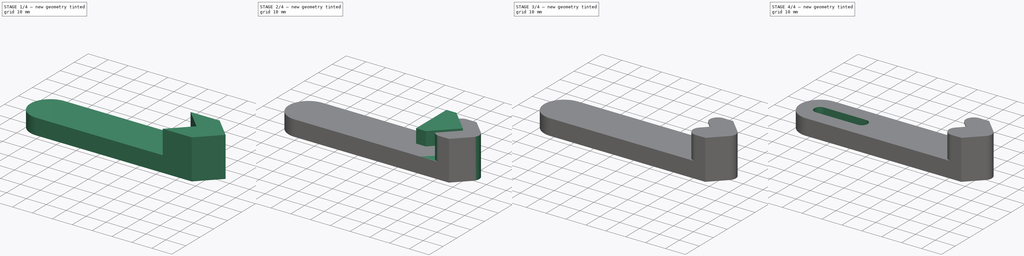
[diagram: build sequence overview — one tinted view per stage of 4, left to right]
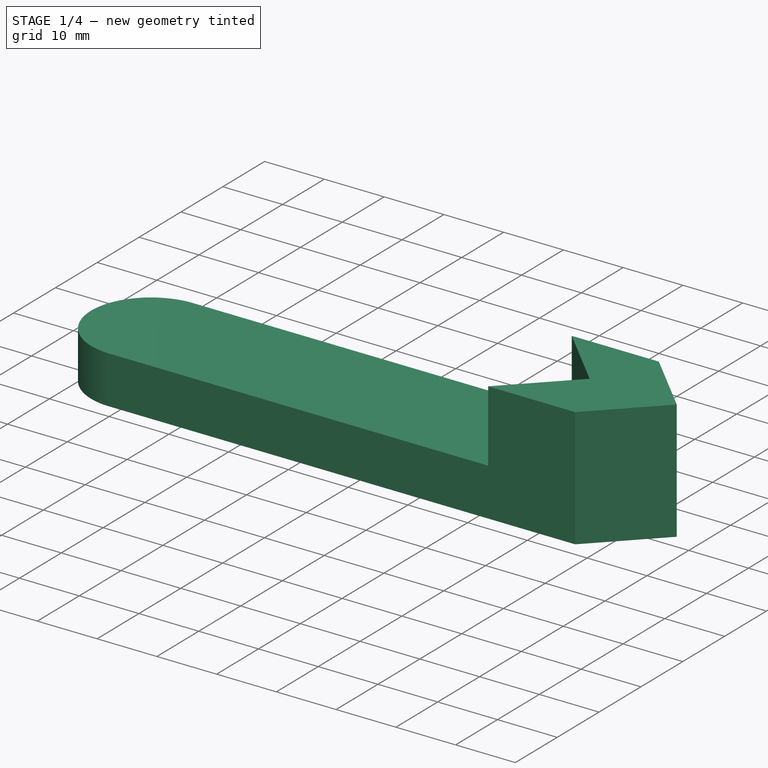
[diagram: stage 1 of 4 — iso view after this stage's code; geometry added in this stage tinted green]
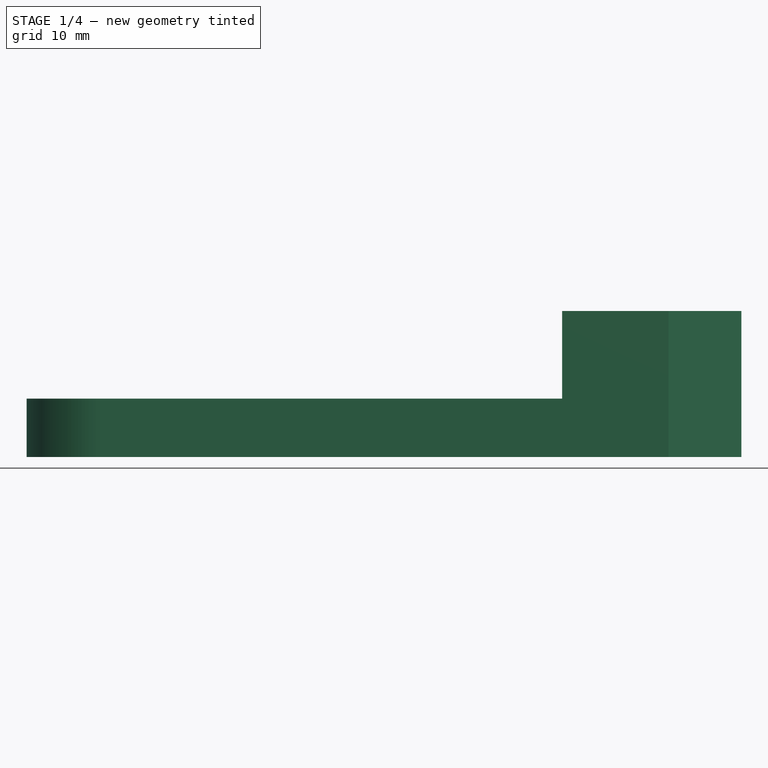
[diagram: stage 1 of 4 — front view after this stage's code; geometry added in this stage tinted green]
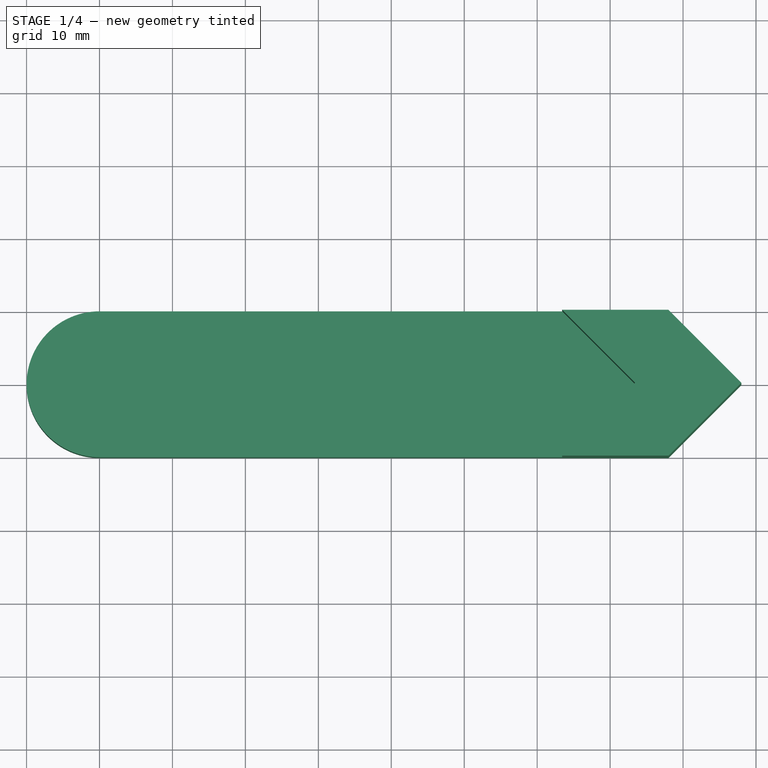
[diagram: stage 1 of 4 — top view after this stage's code; geometry added in this stage tinted green]
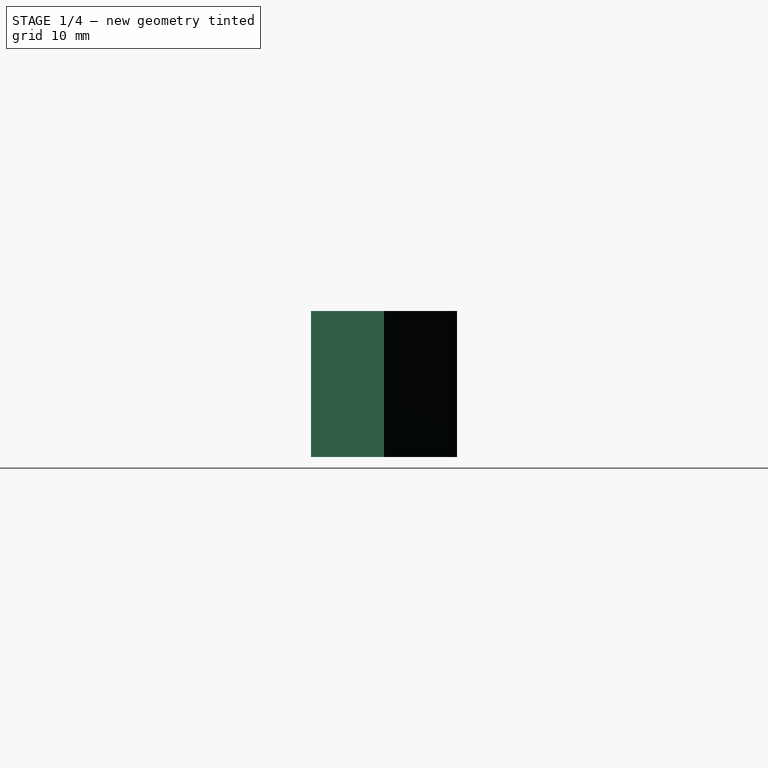
[diagram: stage 1 of 4 — right view after this stage's code; geometry added in this stage tinted green]
FCSTD DOCUMENT
Label: glass_corner
objects: Sketcher::SketchObject×6, PartDesign::Pocket×4, PartDesign::Pad×2, PartDesign::Mirrored×1, PartDesign::Fillet×1, Part::Cut×1
note: 21 computed .brp shape members not serialized (recipe doc carries the construction recipe); baked Part::Feature solids carry a one-line shape summary decoded from their .brp

FEATURE [Sketcher::SketchObject] Sketch
  sketch-geometry (5):
    g0: LineSegment StartX=78 StartY=-10 StartZ=0 EndX=0 EndY=-10 EndZ=0
    g1: ArcOfCircle CenterX=0 CenterY=0 CenterZ=0 NormalX=0 NormalY=0 NormalZ=1 Radius=10 StartAngle=1.5708 EndAngle=4.71239
    g2: LineSegment StartX=0 StartY=10 StartZ=0 EndX=78 EndY=10 EndZ=0
    g3: LineSegment StartX=78 StartY=10 StartZ=0 EndX=88 EndY=0 EndZ=0
    g4: LineSegment StartX=88 StartY=0 StartZ=0 EndX=78 EndY=-10 EndZ=0
  constraints (13):
    c: Horizontal(g0)
    c: Tangent(g0,g1)
    c: Tangent(g1,g2)
    c: Coincident(g2,g3)
    c: Coincident(g3,g4)
    c: Coincident(g4,g0)
    c: Radius(g1) = 10
    c: Horizontal(g2)
    c: Equal(g2,g0)
    c: Equal(g3,g4)
    c: Perpendicular(g3,g4)
    c: DistanceX(g0,g3) = 88
    c: Coincident(g1,g-1)
FEATURE [PartDesign::Pad] Pad
  Length = 20
  Length2 = 100
  Sketch = -> Sketch
  Type = 0
FEATURE [Sketcher::SketchObject] Sketch001
  ExternalGeometry = -> [Pad]
  Placement = pos=(0,0,20) rot=(0,0,1;0rad)
  Support = -> Pad [Face7]
  sketch-geometry (5):
    g0: LineSegment StartX=-12 StartY=11 StartZ=0 EndX=62.4195 EndY=11 EndZ=0
    g1: LineSegment StartX=62.4195 StartY=11 StartZ=0 EndX=73.4195 EndY=0 EndZ=0
    g2: LineSegment StartX=62.4195 StartY=-11 StartZ=0 EndX=-12 EndY=-11 EndZ=0
    g3: LineSegment StartX=-12 StartY=-11 StartZ=0 EndX=-12 EndY=11 EndZ=0
    g4: LineSegment StartX=62.4195 StartY=-11 StartZ=0 EndX=73.4195 EndY=0 EndZ=0
  constraints (15):
    c: Coincident(g0,g1)
    c: Coincident(g2,g3)
    c: Coincident(g3,g0)
    c: Horizontal(g0)
    c: Horizontal(g2)
    c: Vertical(g3)
    c: Parallel(g1,g-3)
    c: Coincident(g4,g2)
    c: Coincident(g4,g1)
    c: Parallel(g4,g-4)
    c: PointOnObject(g1,g-1)
    c: Equal(g2,g0)
    c: Distance(g-3,g1) = 10.31
    c: DistanceX(g-1,g2) = -12
    c: DistanceY(g2,g-4) = 1
FEATURE [PartDesign::Pocket] Pocket
  Length = 12
  Sketch = -> Sketch001
  Type = 0
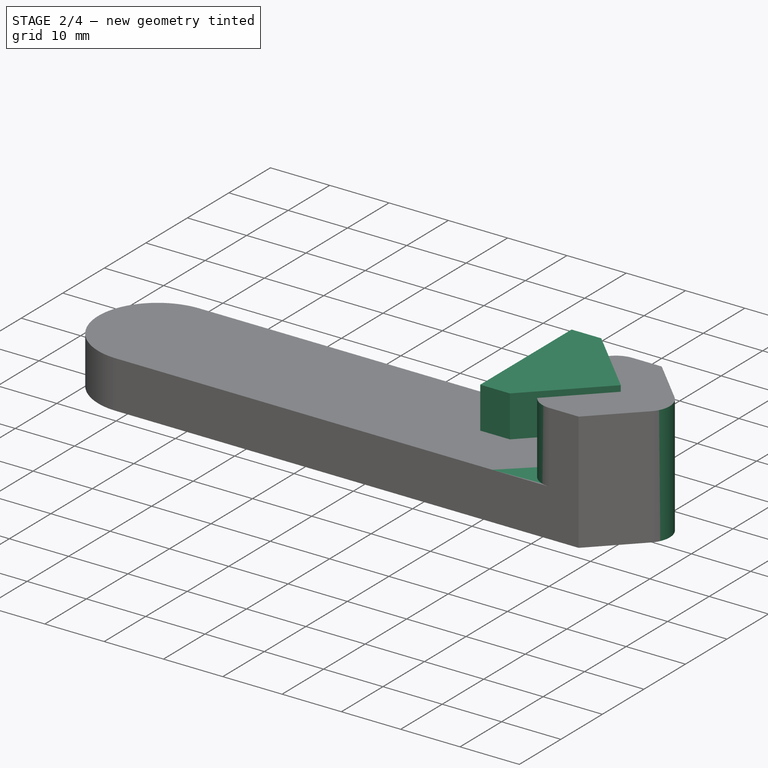
[diagram: stage 2 of 4 — iso view after this stage's code; geometry added in this stage tinted green]
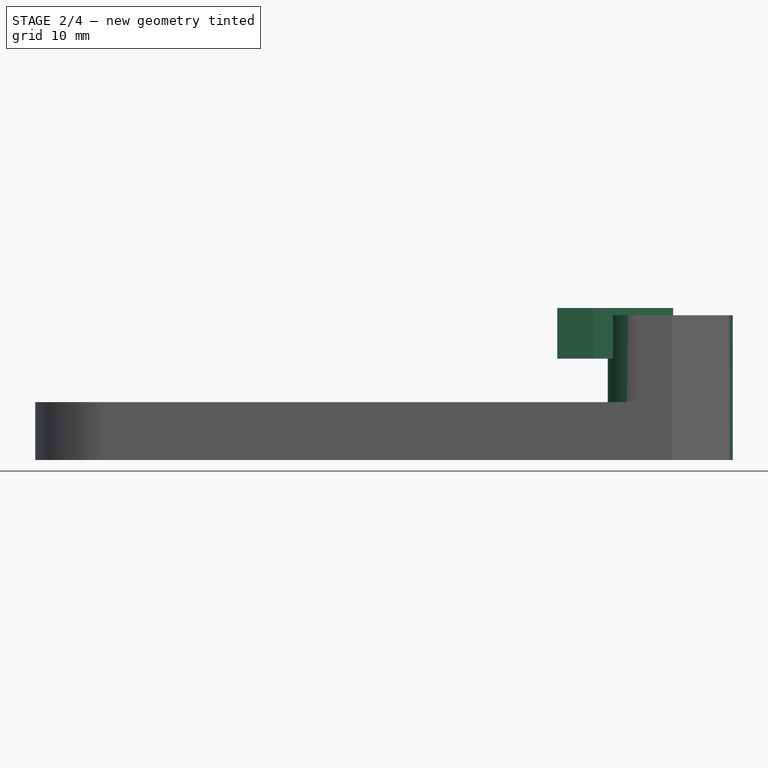
[diagram: stage 2 of 4 — front view after this stage's code; geometry added in this stage tinted green]
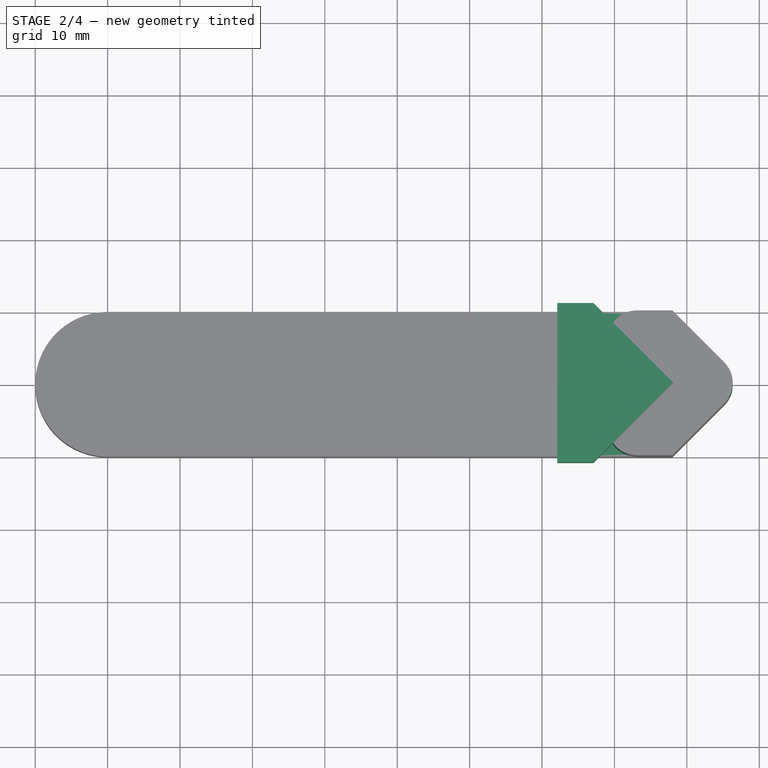
[diagram: stage 2 of 4 — top view after this stage's code; geometry added in this stage tinted green]
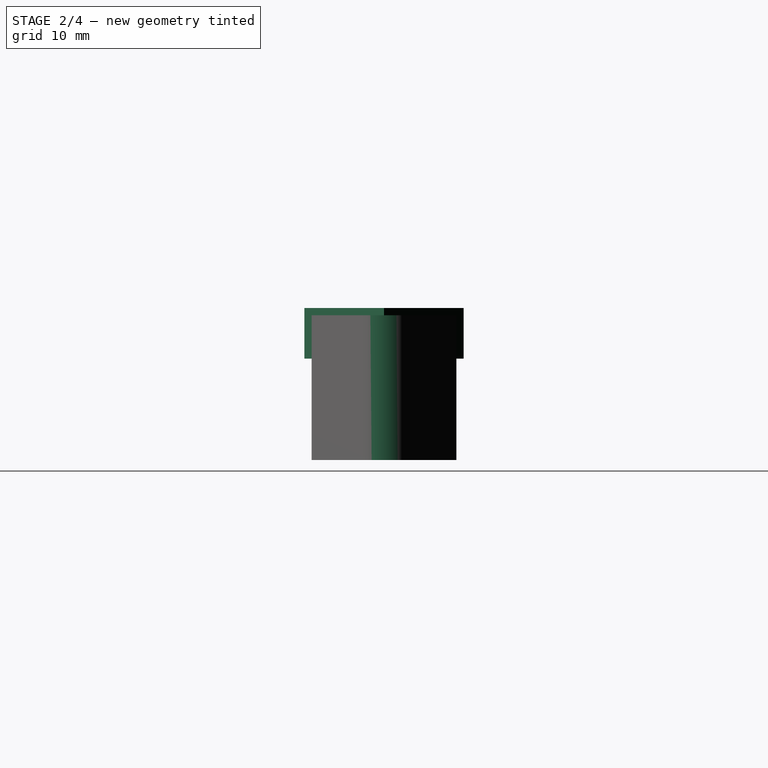
[diagram: stage 2 of 4 — right view after this stage's code; geometry added in this stage tinted green]
FEATURE [Sketcher::SketchObject] Sketch002
  Placement = pos=(0,0,14) rot=(0,0,1;0rad)
  sketch-geometry (7):
    g0: LineSegment [constr] StartX=78 StartY=10 StartZ=0 EndX=88 EndY=0 EndZ=0
    g1: LineSegment [constr] StartX=88 StartY=0 StartZ=0 EndX=78 EndY=-10 EndZ=0
    g2: LineSegment StartX=67.1005 StartY=11 StartZ=0 EndX=78.1005 EndY=0 EndZ=0
    g3: LineSegment StartX=78.1005 StartY=0 StartZ=0 EndX=67.1005 EndY=-11 EndZ=0
    g4: LineSegment StartX=67.1005 StartY=11 StartZ=0 EndX=62.1005 EndY=11 EndZ=0
    g5: LineSegment StartX=62.1005 StartY=11 StartZ=0 EndX=62.1005 EndY=-11 EndZ=0
    g6: LineSegment StartX=62.1005 StartY=-11 StartZ=0 EndX=67.1005 EndY=-11 EndZ=0
  constraints (20):
    c: Perpendicular(g0,g1)
    c: Equal(g1,g0)
    c: PointOnObject(g0,g-1)
    c: DistanceX(g-1,g0) = 88
    c: Perpendicular(g2,g3)
    c: Coincident(g4,g5)
    c: Coincident(g5,g6)
    c: Horizontal(g4)
    c: Horizontal(g6)
    c: Vertical(g5)
    c: Coincident(g3,g6)
    c: Coincident(g2,g4)
    c: Equal(g4,g6)
    c: Equal(g3,g2)
    c: PointOnObject(g2,g-1)
    c: Distance(g0,g2) = 7
    c: Angle(g-1,g0) = 2.35619
    c: DistanceY(g1,g0) = 20
    c: DistanceY(g5) = -22
    c: DistanceX(g6) = 5
FEATURE [PartDesign::Pad] Pad001
  Length = 7
  Length2 = 100
  Placement = pos=(0,0,14) rot=(0,0,1;0rad)
  Sketch = -> Sketch002
  Type = 0
FEATURE [PartDesign::Fillet] Fillet
  Base = -> Pocket [Edge9,Edge24,Edge2]
  Radius = 4
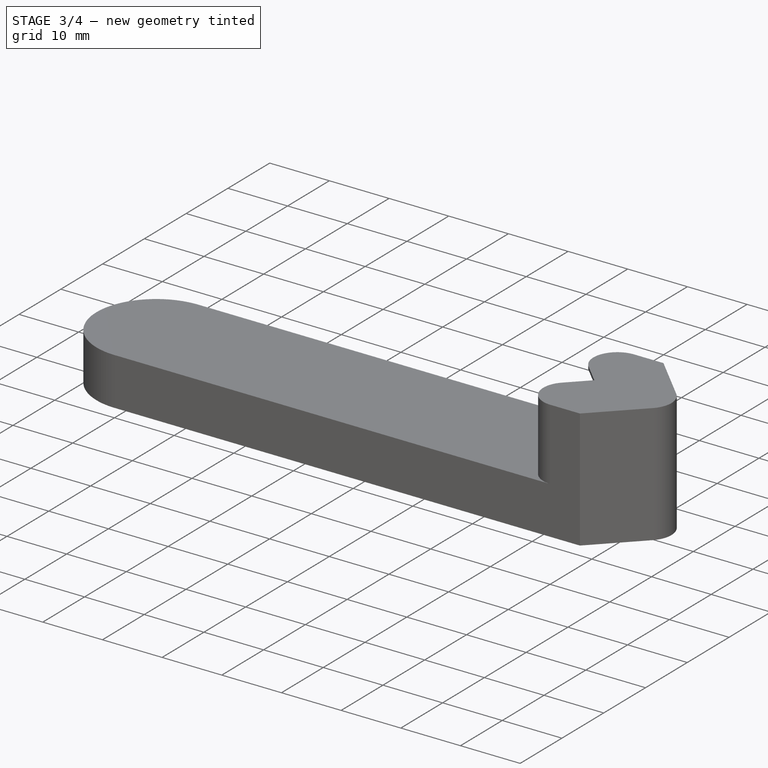
[diagram: stage 3 of 4 — iso view after this stage's code; geometry added in this stage tinted green]
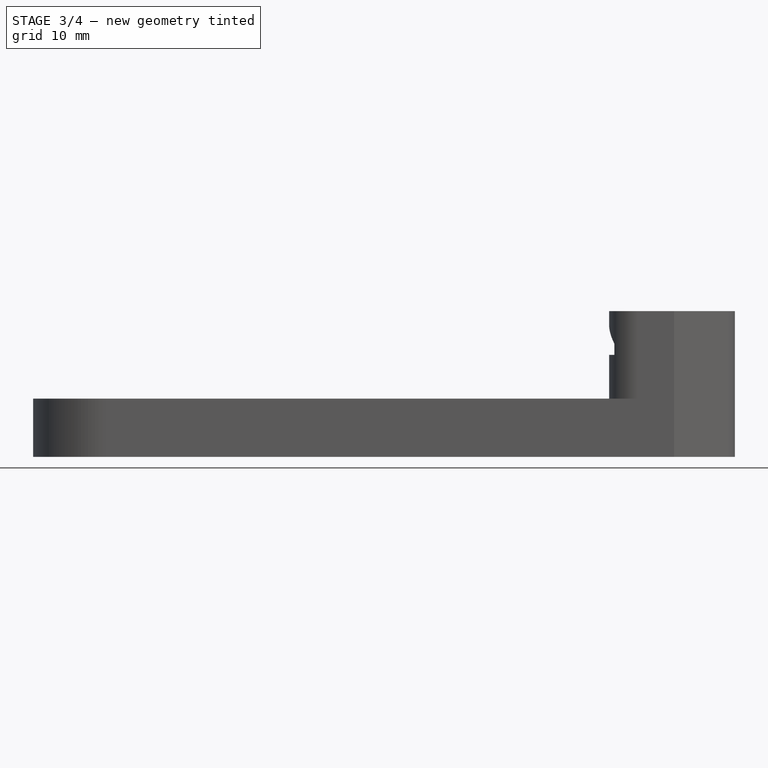
[diagram: stage 3 of 4 — front view after this stage's code; geometry added in this stage tinted green]
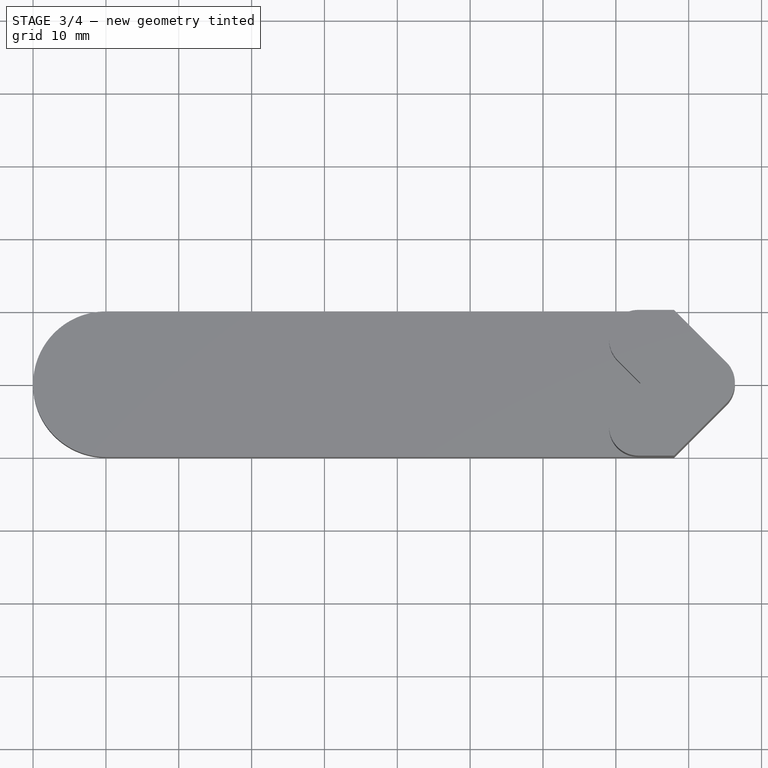
[diagram: stage 3 of 4 — top view after this stage's code; geometry added in this stage tinted green]
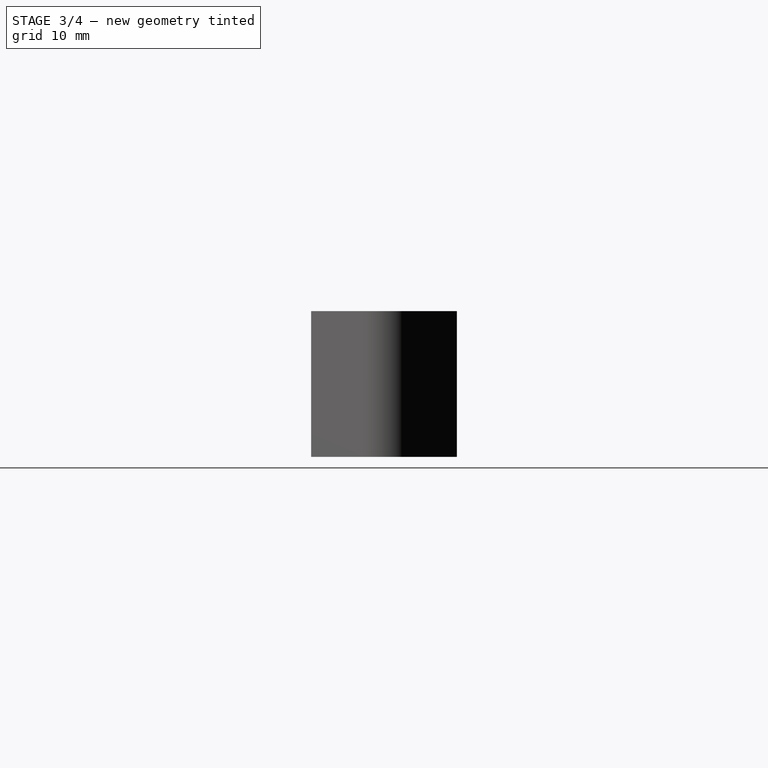
[diagram: stage 3 of 4 — right view after this stage's code; geometry added in this stage tinted green]
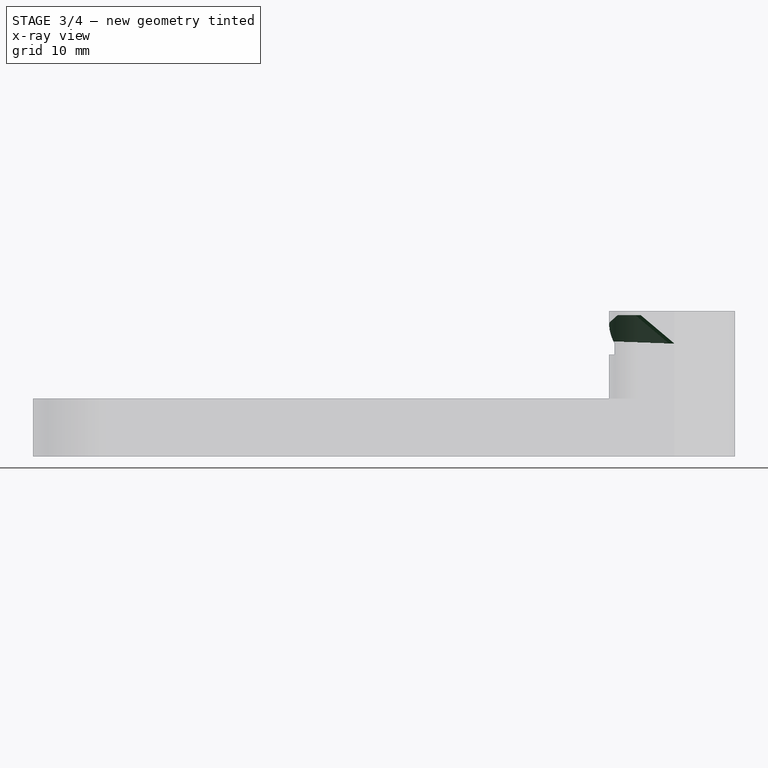
[diagram: stage 3 of 4 — x-ray composite at the front view; earlier geometry ghosted, this stage's added geometry solid]
FEATURE [Sketcher::SketchObject] Sketch003
  ExternalGeometry = -> [Pad001]
  Placement = pos=(39.0503,-39.0503,14) rot=(0.862856,0.357407,0.357407;1.71777rad)
  Support = -> Pad001 [Face2]
  sketch-geometry (3):
    g0: LineSegment StartX=49.7797 StartY=8 StartZ=0 EndX=55.2254 EndY=1.51 EndZ=0
    g1: LineSegment StartX=55.2254 StartY=1.51 StartZ=0 EndX=55.2254 EndY=8 EndZ=0
    g2: LineSegment StartX=55.2254 StartY=8 StartZ=0 EndX=49.7797 EndY=8 EndZ=0
  constraints (9):
    c: Coincident(g0,g1)
    c: Vertical(g1)
    c: Coincident(g1,g2)
    c: Coincident(g2,g0)
    c: Horizontal(g2)
    c: PointOnObject(g0,g-3)
    c: Angle(g0,g-1) = 0.872665
    c: DistanceY(g1,g-3) = -1
    c: DistanceY(g0,g-3) = -1.51
FEATURE [PartDesign::Pocket] Pocket001
  Length = 5
  Placement = pos=(0,0,14) rot=(0,0,1;0rad)
  Sketch = -> Sketch003
  Type = 1
FEATURE [PartDesign::Mirrored] Mirrored
  Originals = -> [Pocket001]
  Placement = pos=(0,0,14) rot=(0,0,1;0rad)
  StdMirrorPlane = XZ
FEATURE [Part::Cut] Cut
  Base = -> Fillet
  Tool = -> Mirrored
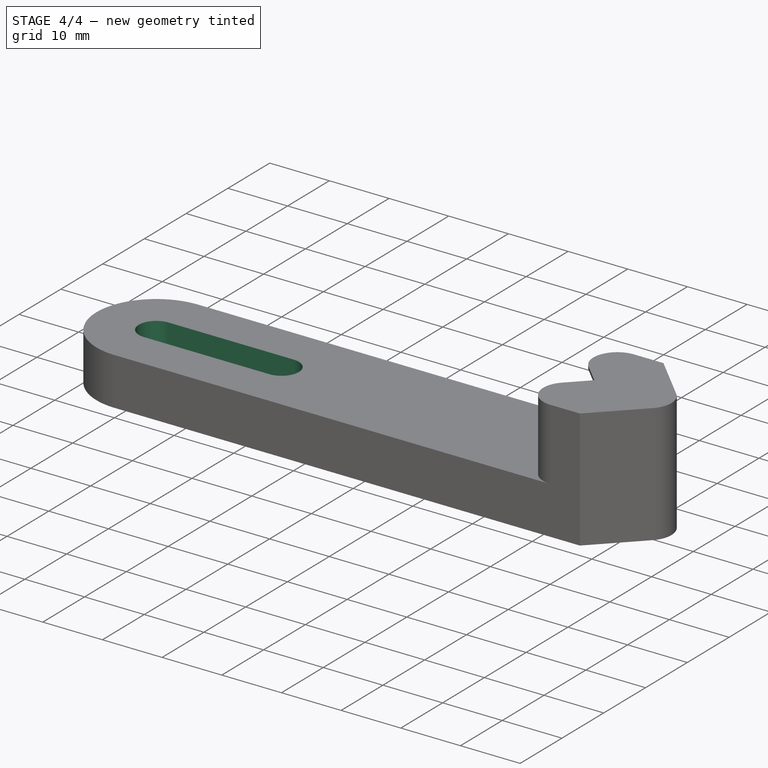
[diagram: stage 4 of 4 — iso view after this stage's code; geometry added in this stage tinted green]
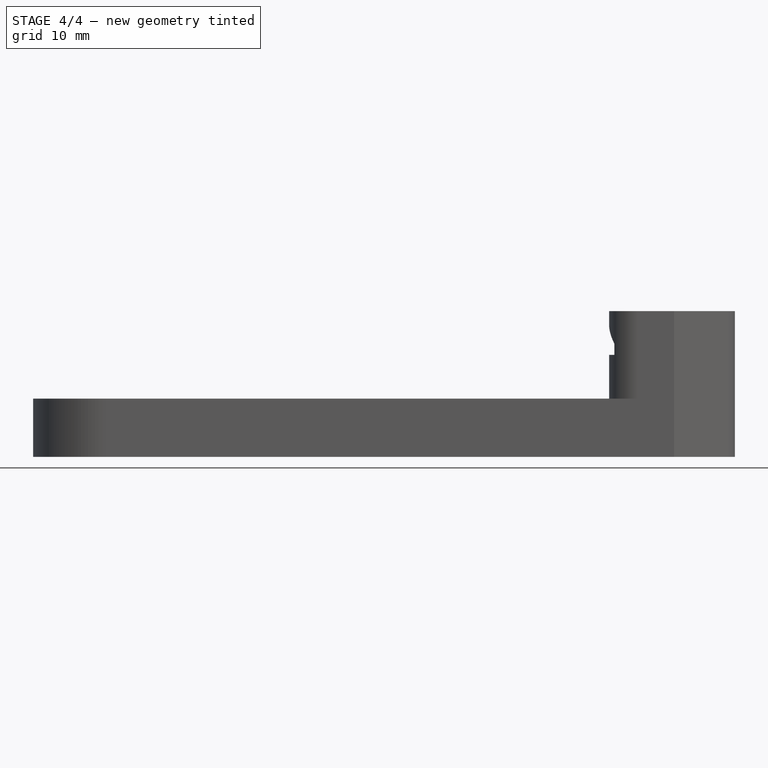
[diagram: stage 4 of 4 — front view after this stage's code; geometry added in this stage tinted green]
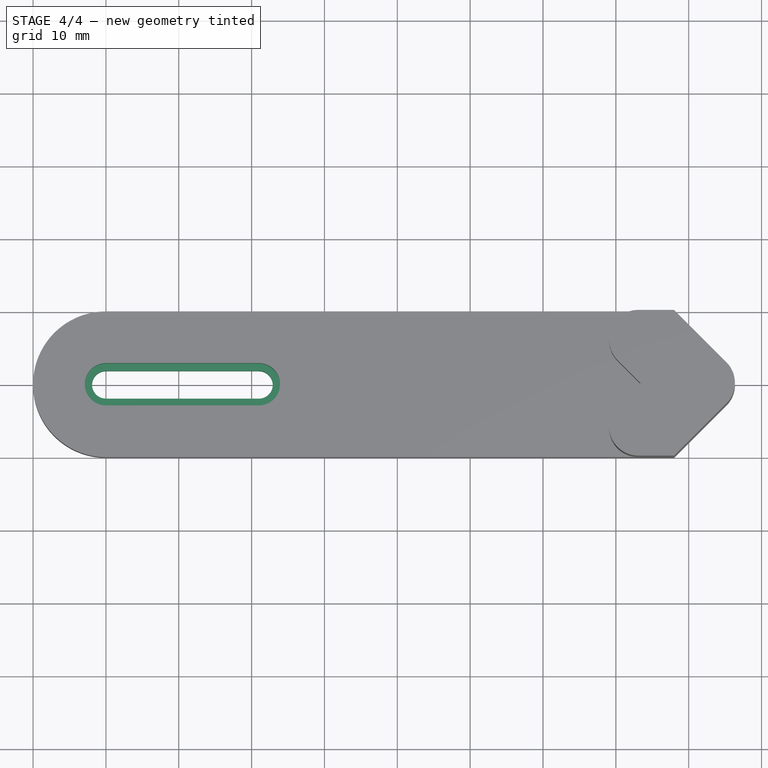
[diagram: stage 4 of 4 — top view after this stage's code; geometry added in this stage tinted green]
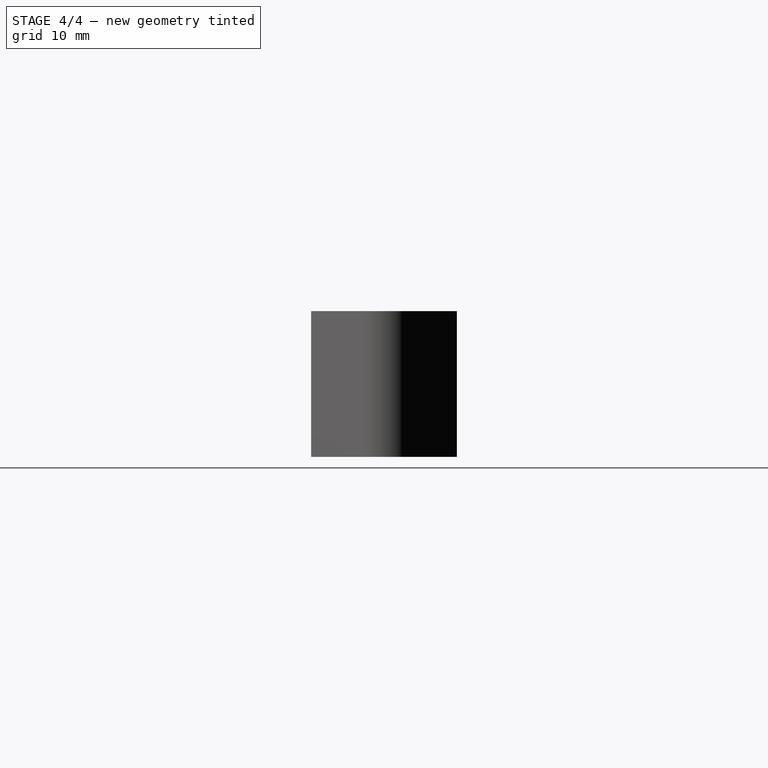
[diagram: stage 4 of 4 — right view after this stage's code; geometry added in this stage tinted green]
FEATURE [Sketcher::SketchObject] Sketch004
  Placement = pos=(0,0,8) rot=(0,0,1;0rad)
  Support = -> Cut [Face10]
  sketch-geometry (4):
    g0: LineSegment StartX=21 StartY=-1.9 StartZ=0 EndX=0 EndY=-1.9 EndZ=0
    g1: ArcOfCircle CenterX=0 CenterY=0 CenterZ=0 NormalX=0 NormalY=0 NormalZ=1 Radius=1.9 StartAngle=1.5708 EndAngle=4.71239
    g2: LineSegment StartX=0 StartY=1.9 StartZ=0 EndX=21 EndY=1.9 EndZ=0
    g3: ArcOfCircle CenterX=21 CenterY=0 CenterZ=0 NormalX=0 NormalY=0 NormalZ=1 Radius=1.9 StartAngle=4.71238 EndAngle=7.85398
  constraints (10):
    c: Horizontal(g0)
    c: Tangent(g0,g1)
    c: Tangent(g1,g2)
    c: Tangent(g2,g3)
    c: Coincident(g3,g0)
    c: Tangent(g3,g0)
    c: Horizontal(g2)
    c: Radius(g3) = 1.9
    c: DistanceX(g2) = 21
    c: Coincident(g1,g-1)
FEATURE [PartDesign::Pocket] Pocket002
  Length = 5
  Sketch = -> Sketch004
  Type = 1
FEATURE [Sketcher::SketchObject] Sketch005
  ExternalGeometry = -> [Pocket002]
  Placement = pos=(0,0,8) rot=(0,0,1;0rad)
  Support = -> Pocket002 [Face14]
  sketch-geometry (4):
    g0: LineSegment StartX=4.62989e-07 StartY=-2.9 StartZ=0 EndX=21 EndY=-2.9 EndZ=0
    g1: ArcOfCircle CenterX=21 CenterY=0 CenterZ=0 NormalX=0 NormalY=0 NormalZ=1 Radius=2.9 StartAngle=4.71239 EndAngle=7.85398
    g2: LineSegment StartX=21 StartY=2.9 StartZ=0 EndX=0 EndY=2.9 EndZ=0
    g3: ArcOfCircle CenterX=0 CenterY=0 CenterZ=0 NormalX=0 NormalY=0 NormalZ=1 Radius=2.9 StartAngle=1.5708 EndAngle=4.71239
  constraints (10):
    c: Horizontal(g0)
    c: Tangent(g0,g1)
    c: Tangent(g1,g2)
    c: Tangent(g2,g3)
    c: Coincident(g3,g0)
    c: Tangent(g3,g0)
    c: Horizontal(g2)
    c: Radius(g1) = 2.9
    c: Coincident(g3,g-1)
    c: Coincident(g1,g-3)
FEATURE [PartDesign::Pocket] Pocket003
  Length = 4
  Sketch = -> Sketch005
  Type = 0
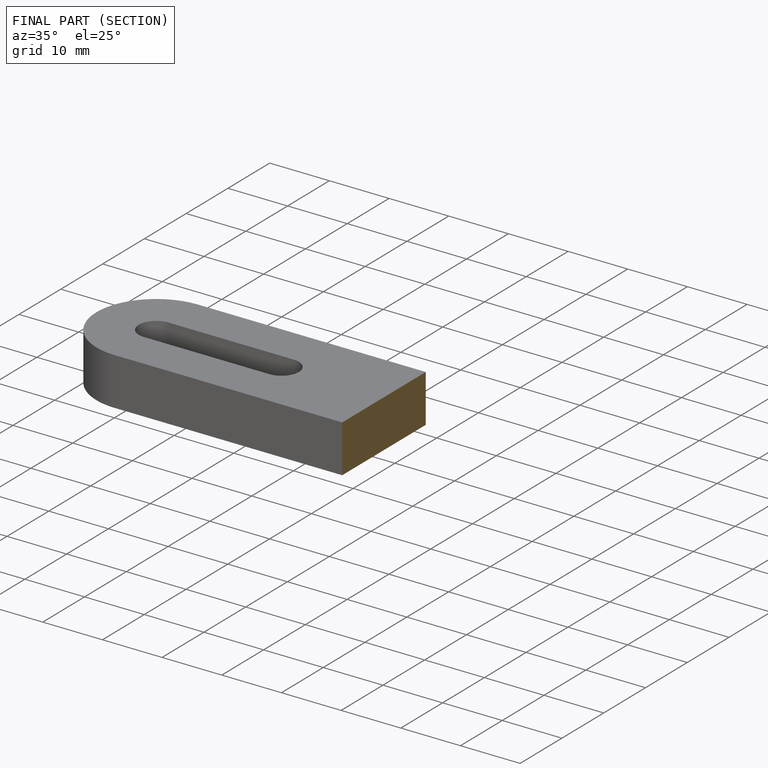
[diagram: finished part — half-section view (interior)]
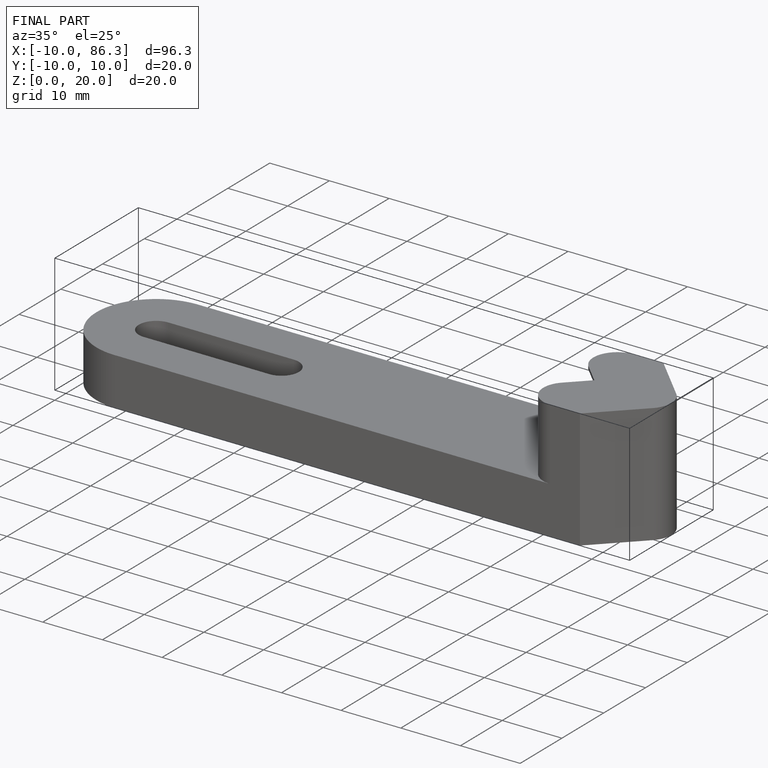
[diagram: finished part — iso view with bounding-box wireframe]
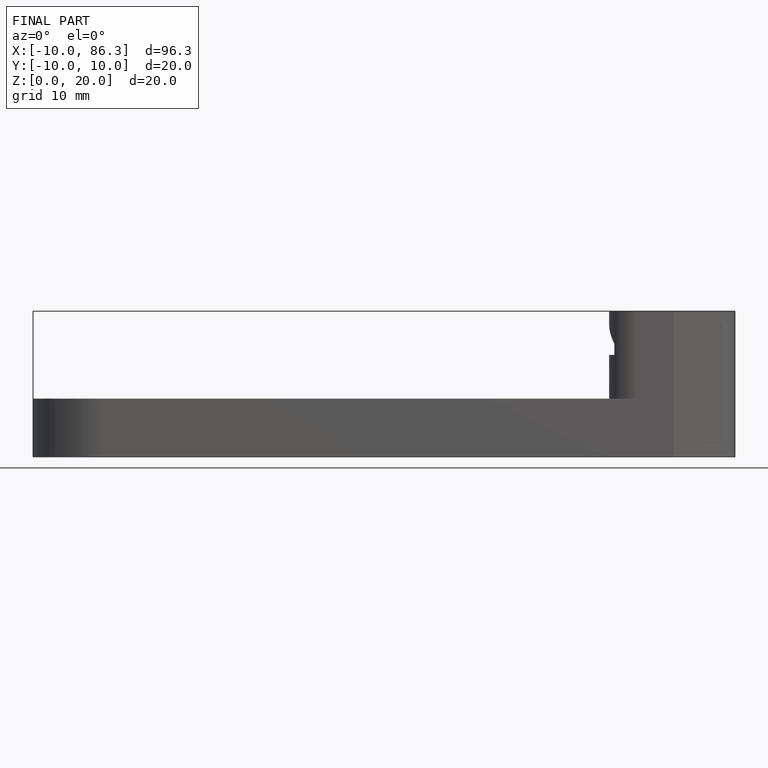
[diagram: finished part — front view with bounding-box wireframe]
